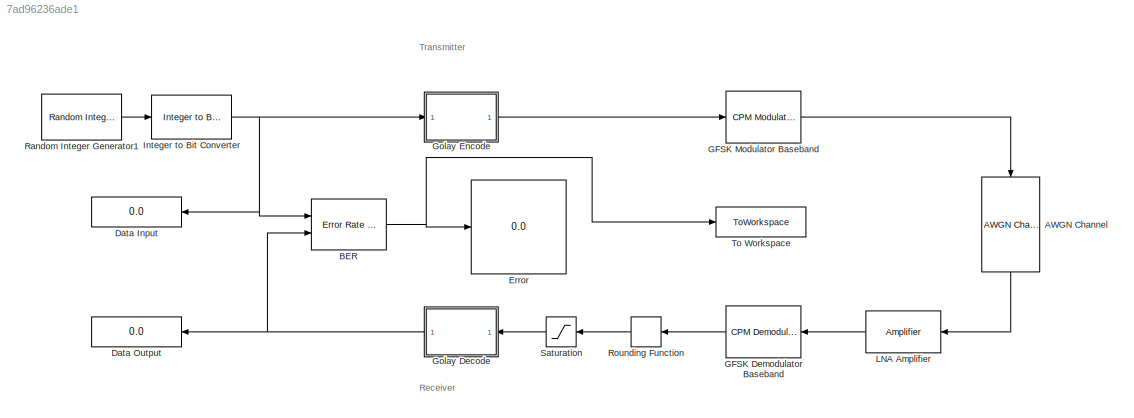
MODEL slx_7ad96236ade1
KIND model
CONFIG AbsTol = auto
CONFIG EnableMultiTasking = off
CONFIG FixedStep = auto
CONFIG MaxStep = auto
CONFIG MinStep = auto
CONFIG RelTol = 1e-3
CONFIG SampleTimeConstraint = Unconstrained
CONFIG SolverName = VariableStepAuto
CONFIG StartTime = 0.0
CONFIG StopTime = 5
BLOCK [Reference] AWGN Channel  REF=commchan3/AWGN
Channel
  NameLocation = left
  Ports = [1, 1]
  SourceBlock = commchan3/AWGN\nChannel
  SourceProductBaseCode = CM
  SourceType = AWGN Channel
  UserDataPersistent = on
BLOCK [Reference] BER  REF=commsink2/Error Rate
Calculation
  Ports = [2, 1]
  SourceBlock = commsink2/Error Rate\nCalculation
  SourceProductBaseCode = CM
  SourceType = Error Rate Calculation
BLOCK [Display] Data Input
  Decimation = 1
  Format = long
  NameLocation = top
  Ports = [1]
BLOCK [Display] Data Output
  Decimation = 1
  Format = binary (Stored Integer)
  NameLocation = top
  Ports = [1]
BLOCK [Display] Error
  Decimation = 1
  Format = binary (Stored Integer)
  Ports = [1]
BLOCK [Reference] GFSK Demodulator Baseband  REF=commdigbbndcpm2/CPM
Demodulator
Baseband
  NameLocation = top
  Ports = [1, 1]
  SourceBlock = commdigbbndcpm2/CPM\nDemodulator\nBaseband
  SourceProductBaseCode = CM
  SourceType = CPM Demodulator Baseband
  UserDataPersistent = on
BLOCK [Reference] GFSK Modulator Baseband  REF=commdigbbndcpm2/CPM
Modulator
Baseband
  Ports = [1, 1]
  SourceBlock = commdigbbndcpm2/CPM\nModulator\nBaseband
  SourceProductBaseCode = CM
  SourceType = CPM Modulator Baseband
  UserDataPersistent = on
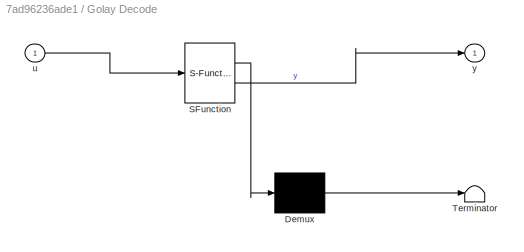
BLOCK [SubSystem] Golay Decode
  ErrorFcn = Stateflow.Translate.translate
  NameLocation = top
  PermitHierarchicalResolution = ExplicitOnly
  Ports = [1, 1]
  RequestExecContextInheritance = off
  SFBlockType = MATLAB Function
  TreatAsAtomicUnit = on
BLOCK [Demux] Golay Decode/ Demux 
  Outputs = 1
  Ports = [1, 1]
BLOCK [S-Function] Golay Decode/ SFunction 
  EnableBusSupport = on
  FunctionName = sf_sfun
  PortCounts = [1 2]
  Ports = [1, 2]
  SFcnIsStateOwnerBlock = off
  SFunctionDeploymentMode = off
  Tag = Stateflow S-Function 3
BLOCK [Terminator] Golay Decode/ Terminator 
BLOCK [Inport] Golay Decode/u
BLOCK [Outport] Golay Decode/y
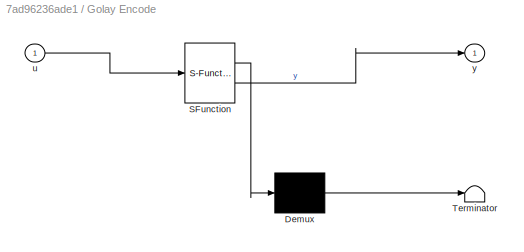
BLOCK [SubSystem] Golay Encode
  ErrorFcn = Stateflow.Translate.translate
  NameLocation = top
  PermitHierarchicalResolution = ExplicitOnly
  Ports = [1, 1]
  RequestExecContextInheritance = off
  SFBlockType = MATLAB Function
  TreatAsAtomicUnit = on
BLOCK [Demux] Golay Encode/ Demux 
  Outputs = 1
  Ports = [1, 1]
BLOCK [S-Function] Golay Encode/ SFunction 
  EnableBusSupport = on
  FunctionName = sf_sfun
  PortCounts = [1 2]
  Ports = [1, 2]
  SFcnIsStateOwnerBlock = off
  SFunctionDeploymentMode = off
  Tag = Stateflow S-Function 1
BLOCK [Terminator] Golay Encode/ Terminator 
BLOCK [Inport] Golay Encode/u
BLOCK [Outport] Golay Encode/y
BLOCK [Reference] Integer to Bit Converter  REF=commutil2/Integer to Bit
Converter
  Ports = [1, 1]
  SourceBlock = commutil2/Integer to Bit\nConverter
  SourceProductBaseCode = CM
  SourceType = Integer to Bit Converter
BLOCK [Reference] LNA Amplifier  REF=commrflib2/Amplifier
  NameLocation = top
  Ports = [1, 1]
  SourceBlock = commrflib2/Amplifier
  SourceProductBaseCode = CM
  SourceType = rf.Amplifier
BLOCK [Reference] Random Integer Generator1  REF=commrandsrc3/Random Integer
Generator
  Ports = [0, 1]
  SourceBlock = commrandsrc3/Random Integer\nGenerator
  SourceProductBaseCode = CM
  SourceType = Random Integer Generator
BLOCK [Rounding] Rounding Function
  NameLocation = top
  Operator = round
BLOCK [Saturate] Saturation
  LowerLimit = 0
  NameLocation = top
  UpperLimit = 1
BLOCK [ToWorkspace] To Workspace
  FixptAsFi = on
  MaxDataPoints = inf
  Ports = [1]
  SampleTime = -1
  SaveFormat = Timeseries
  VariableName = ber
ANNOTATION (root): Receiver
ANNOTATION (root): Transmitter
LINE AWGN Channel:1 -> LNA Amplifier:1
NET BER:1 -> Error:1, To Workspace:1
LINE GFSK Demodulator Baseband:1 -> Rounding Function:1
LINE GFSK Modulator Baseband:1 -> AWGN Channel:1
NET Golay Decode:1 -> BER:2, Data Output:1
LINE Golay Encode:1 -> GFSK Modulator Baseband:1
NET Integer to Bit Converter:1 -> BER:1, Data Input:1, Golay Encode:1
LINE LNA Amplifier:1 -> GFSK Demodulator Baseband:1
LINE Random Integer Generator1:1 -> Integer to Bit Converter:1
LINE Rounding Function:1 -> Saturation:1
LINE Saturation:1 -> Golay Decode:1
note: NET lines group one-source signal fan-out (src -> all destinations, sorted); 1:1 wires keep LINE
CHART Golay Decode states=1 transitions=1
  STATE_LABEL 'eML_blk_kernel()'
  STATE_LABEL 'SCRIPT:\nfunction y = fcn(u)\nu1 = zeros(12);\nB =[ 1 1 0 1 1 1 0 0 0 1 0 1; 1 0 1 1 1 0 0 0 1 0 1 1; 0 1 1 1 0 0 0 1 0 1 1 1 ; ...\n1 1 1 0 0 0 1 0 1 1 0 1 ; 1 1 0 0 0 1 0 1 1 0 1 1 ; 1 0 0 0 1 0 1 1 0 1 1 1; ...\n0 0 0 1 0 1 1 0 1 1 1 1 ; 0 0 1 0 1 1 0 1 1 1 0 1 ; 0 1 0 1 1 0 1 1 1 0 0 1 ; ...\n1 0 1 1 0 1 1 1 0 0 0 1 ; 0 1 1 0 1 1 1 0 0 0 1 1;1 1 1 1 1 1 1 1 1 1 1 0 ];\n\nG = [B eye(12)];\nH = [eye(12) ...<+34ch>'
CHART Golay Encode states=1 transitions=1
  STATE_LABEL 'eML_blk_kernel()'
  STATE_LABEL 'SCRIPT:\nfunction y = fcn(u)\nu1 = zeros(12);\nB =[ 1 1 0 1 1 1 0 0 0 1 0 1; 1 0 1 1 1 0 0 0 1 0 1 1; 0 1 1 1 0 0 0 1 0 1 1 1 ; ...\n1 1 1 0 0 0 1 0 1 1 0 1 ; 1 1 0 0 0 1 0 1 1 0 1 1 ; 1 0 0 0 1 0 1 1 0 1 1 1; ...\n0 0 0 1 0 1 1 0 1 1 1 1 ; 0 0 1 0 1 1 0 1 1 1 0 1 ; 0 1 0 1 1 0 1 1 1 0 0 1 ; ...\n1 0 1 1 0 1 1 1 0 0 0 1 ; 0 1 1 0 1 1 1 0 0 0 1 1;1 1 1 1 1 1 1 1 1 1 1 0 ];\n\nG = [B eye(12)];\nH = [eye(12) ...<+35ch>'
CHART  states=0 transitions=0
CHART  states=0 transitions=0
